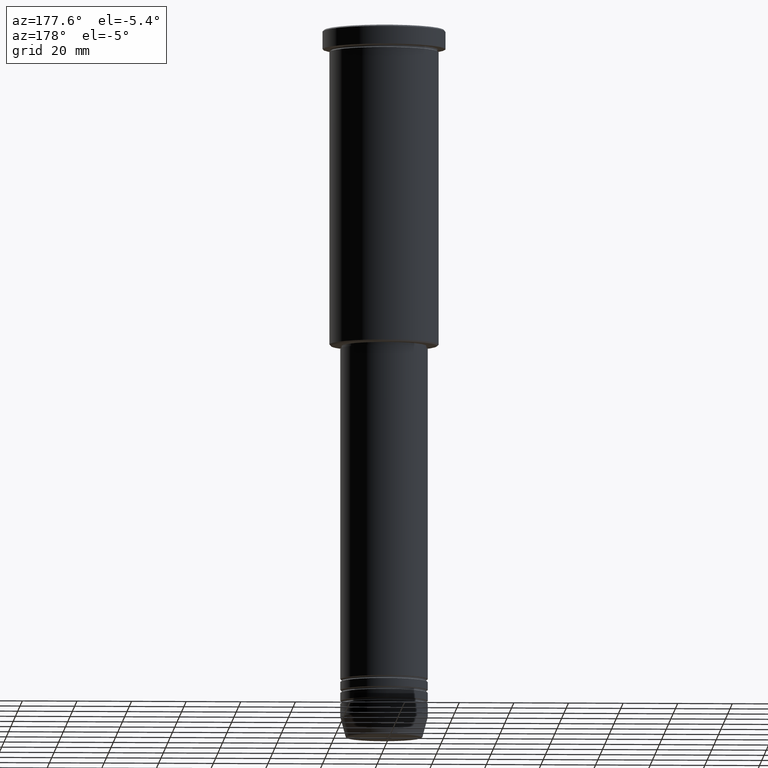
[diagram: clean part render]
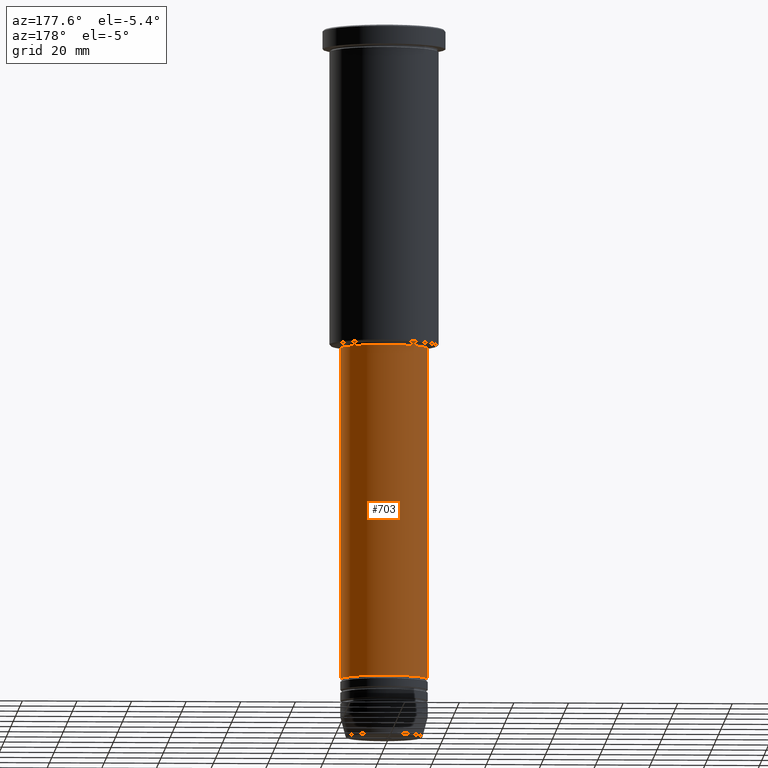
[diagram: same view with one face highlighted and labeled with its STEP entity id]
A machine part, auxiliary view. The second image highlights one B-rep face of the part: STEP entity #703.
In plain terms, the highlighted cylindrical surface (partial cylindrical patch) has radius 16 mm, axis along (-0, -0, 1).
Its self-contained STEP definition (entity closure, byte-faithful):
#9 = EDGE_CURVE ( 'NONE', #784, #747, #548, .T. ) ;
#13 = VERTEX_POINT ( 'NONE', #733 ) ;
#70 = EDGE_CURVE ( 'NONE', #13, #747, #817, .T. ) ;
#175 = ORIENTED_EDGE ( 'NONE', *, *, #70, .T. ) ;
#186 = EDGE_LOOP ( 'NONE', ( #638, #175, #370, #199 ) ) ;
#199 = ORIENTED_EDGE ( 'NONE', *, *, #282, .F. ) ;
#245 = AXIS2_PLACEMENT_3D ( 'NONE', #656, #751, #741 ) ;
#282 = EDGE_CURVE ( 'NONE', #322, #784, #411, .T. ) ;
#289 = CIRCLE ( 'NONE', #950, 16.00000000000000000 ) ;
#302 = CARTESIAN_POINT ( 'NONE',  ( 0.000000000000000000, 0.000000000000000000, -238.5000000000000000 ) ) ;
#322 = VERTEX_POINT ( 'NONE', #659 ) ;
#330 = AXIS2_PLACEMENT_3D ( 'NONE', #934, #1020, #748 ) ;
#370 = ORIENTED_EDGE ( 'NONE', *, *, #9, .F. ) ;
#411 = LINE ( 'NONE', #839, #642 ) ;
#548 = CIRCLE ( 'NONE', #245, 16.00000000000000000 ) ;
#583 = DIRECTION ( 'NONE',  ( 1.000000000000000000, 0.000000000000000000, 0.000000000000000000 ) ) ;
#590 = CARTESIAN_POINT ( 'NONE',  ( 16.00000000000000000, 0.000000000000000000, -117.0000000000000142 ) ) ;
#638 = ORIENTED_EDGE ( 'NONE', *, *, #683, .T. ) ;
#642 = VECTOR ( 'NONE', #851, 1000.000000000000000 ) ;
#656 = CARTESIAN_POINT ( 'NONE',  ( 0.000000000000000000, 0.000000000000000000, -117.0000000000000142 ) ) ;
#659 = CARTESIAN_POINT ( 'NONE',  ( 16.00000000000000000, 0.000000000000000000, -238.5000000000000000 ) ) ;
#683 = EDGE_CURVE ( 'NONE', #322, #13, #289, .T. ) ;
#703 = ADVANCED_FACE ( 'NONE', ( #1039 ), #942, .T. ) ;
#733 = CARTESIAN_POINT ( 'NONE',  ( -16.00000000000000000, 1.959434878635765131E-15, -238.5000000000000000 ) ) ;
#741 = DIRECTION ( 'NONE',  ( 1.000000000000000000, 0.000000000000000000, 0.000000000000000000 ) ) ;
#747 = VERTEX_POINT ( 'NONE', #1118 ) ;
#748 = DIRECTION ( 'NONE',  ( 1.000000000000000000, 0.000000000000000000, 0.000000000000000000 ) ) ;
#751 = DIRECTION ( 'NONE',  ( -0.000000000000000000, -0.000000000000000000, 1.000000000000000000 ) ) ;
#784 = VERTEX_POINT ( 'NONE', #590 ) ;
#806 = VECTOR ( 'NONE', #917, 1000.000000000000000 ) ;
#817 = LINE ( 'NONE', #1014, #806 ) ;
#839 = CARTESIAN_POINT ( 'NONE',  ( 16.00000000000000000, 0.000000000000000000, 0.000000000000000000 ) ) ;
#851 = DIRECTION ( 'NONE',  ( -0.000000000000000000, -0.000000000000000000, 1.000000000000000000 ) ) ;
#917 = DIRECTION ( 'NONE',  ( -0.000000000000000000, -0.000000000000000000, 1.000000000000000000 ) ) ;
#923 = DIRECTION ( 'NONE',  ( -0.000000000000000000, -0.000000000000000000, 1.000000000000000000 ) ) ;
#934 = CARTESIAN_POINT ( 'NONE',  ( 0.000000000000000000, 0.000000000000000000, 0.000000000000000000 ) ) ;
#942 = CYLINDRICAL_SURFACE ( 'NONE', #330, 16.00000000000000000 ) ;
#950 = AXIS2_PLACEMENT_3D ( 'NONE', #302, #923, #583 ) ;
#1014 = CARTESIAN_POINT ( 'NONE',  ( -16.00000000000000000, 1.959434878635765131E-15, 0.000000000000000000 ) ) ;
#1020 = DIRECTION ( 'NONE',  ( -0.000000000000000000, -0.000000000000000000, 1.000000000000000000 ) ) ;
#1039 = FACE_OUTER_BOUND ( 'NONE', #186, .T. ) ;
#1118 = CARTESIAN_POINT ( 'NONE',  ( -16.00000000000000000, 1.959434878635765131E-15, -117.0000000000000142 ) ) ;